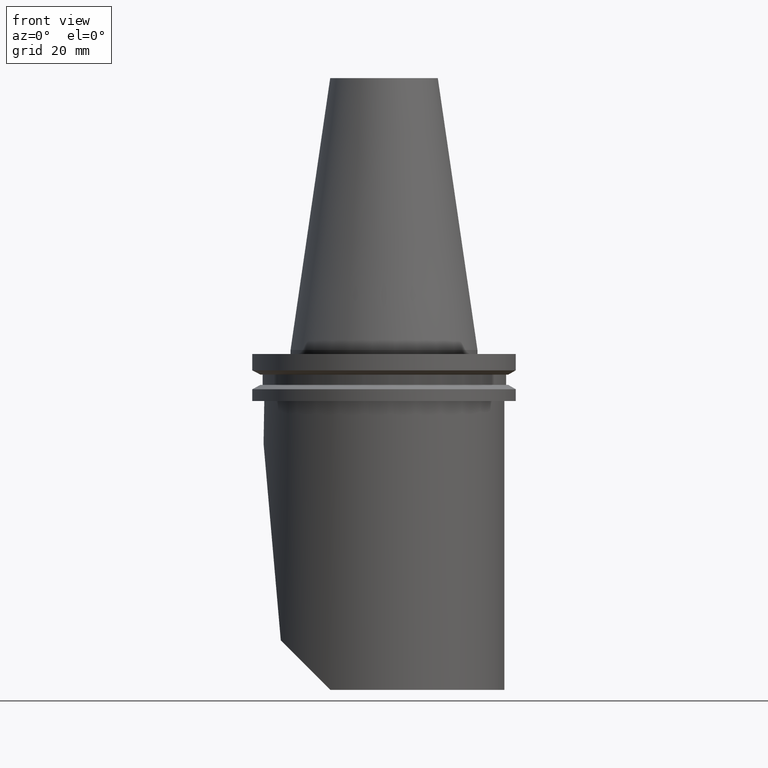
[diagram: clean part render]
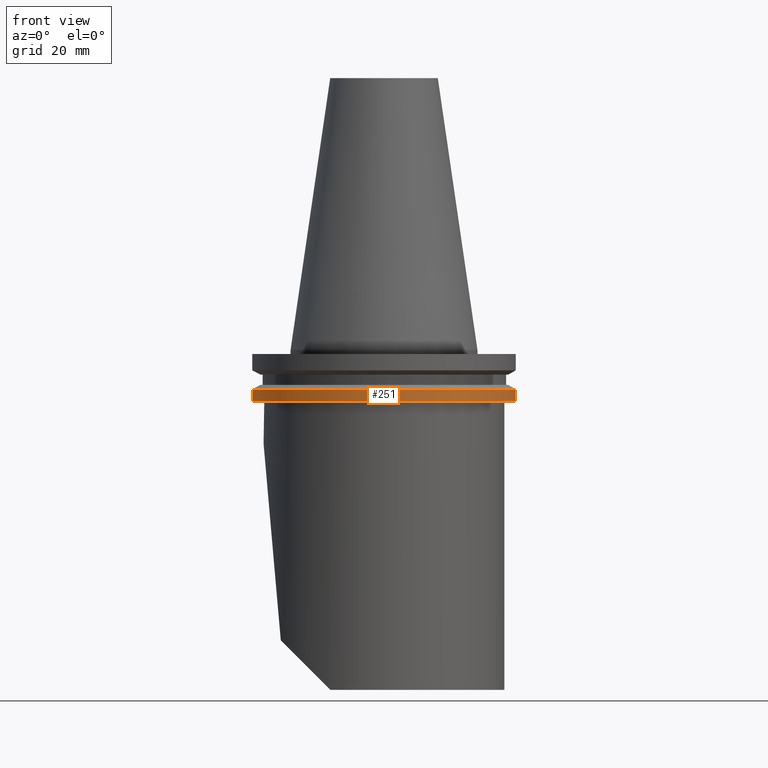
[diagram: same view with one face highlighted and labeled with its STEP entity id]
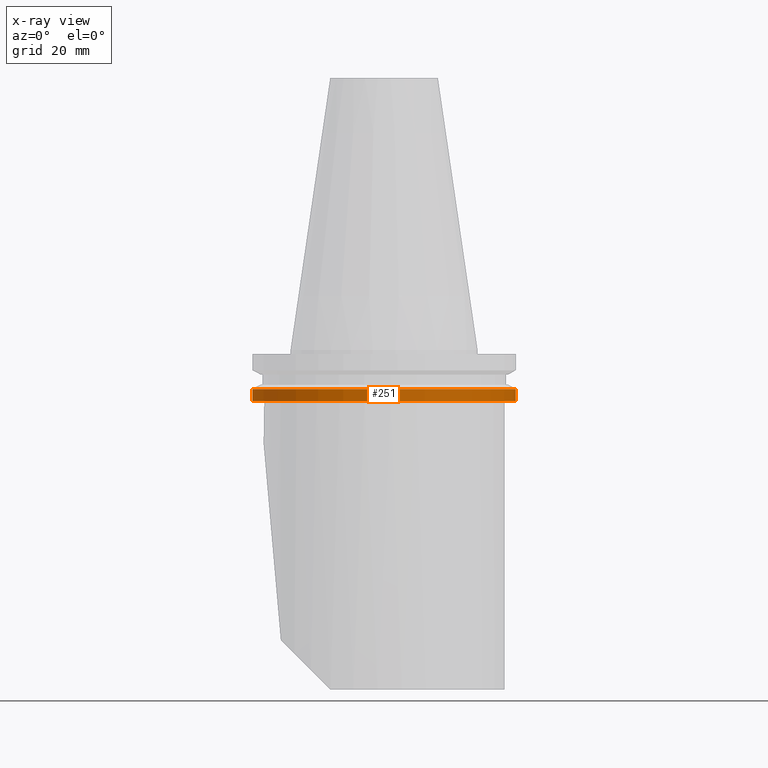
[diagram: x-ray of the same camera — body ghosted, the highlighted face saturated]
A machine part, front view. The second image highlights one B-rep face of the part: STEP entity #251.
The next image is the same camera in x-ray: the body ghosted, the highlighted face saturated — about 0% of this face is hidden behind the body in this view.
In plain terms, the highlighted cylindrical surface (bore or boss wall) has radius 49.2125 mm, axis along (-0, -0, -1).
Its self-contained STEP definition (entity closure, byte-faithful):
#112=EDGE_CURVE('Unnamed[1]',#313,#313,#314,.T.);
#245=EDGE_CURVE('Unnamed[1]',#502,#502,#503,.T.);
#251=ADVANCED_FACE('Unnamed[1]',(#511,#512),#513,.T.);
#313=VERTEX_POINT('',#597);
#314=CIRCLE('',#598,49.2125);
#502=VERTEX_POINT('',#894);
#503=CIRCLE('',#895,49.2125);
#511=FACE_BOUND('',#905,.T.);
#512=FACE_BOUND('',#906,.T.);
#513=CYLINDRICAL_SURFACE('',#907,49.2125);
#597=CARTESIAN_POINT('',(49.2124999999996,-1.02066656666437E-014,-19.0500000000002));
#598=AXIS2_PLACEMENT_3D('',#963,#964,#965);
#894=CARTESIAN_POINT('',(49.2124999999996,-9.93700865318874E-015,-14.6461667700002));
#895=AXIS2_PLACEMENT_3D('',#1183,#1184,#1185);
#905=EDGE_LOOP('',(#1193));
#906=EDGE_LOOP('',(#1194));
#907=AXIS2_PLACEMENT_3D('',#1195,#1196,#1197);
#963=CARTESIAN_POINT('',(-4.31852412616308E-013,-1.16647607618778E-015,-19.05));
#964=DIRECTION('',(-3.41757090727388E-015,-6.1232339957367E-017,-1.0));
#965=DIRECTION('',(1.0,-1.83697019872103E-016,-3.41757090727388E-015));
#1183=CARTESIAN_POINT('',(-4.16802000288974E-013,-8.96819062732866E-016,-14.64616677));
#1184=DIRECTION('',(-3.41757090727388E-015,-6.1232339957367E-017,-1.0));
#1185=DIRECTION('',(1.0,-1.83697019872103E-016,-3.41757090727388E-015));
#1193=ORIENTED_EDGE('',*,*,#112,.F.);
#1194=ORIENTED_EDGE('',*,*,#245,.T.);
#1195=CARTESIAN_POINT('',(-4.24327206452641E-013,-1.03164756946032E-015,-16.848083385));
#1196=DIRECTION('',(-3.41757090727388E-015,-6.1232339957367E-017,-1.0));
#1197=DIRECTION('',(1.0,-1.83697019872103E-016,-3.41757090727388E-015));